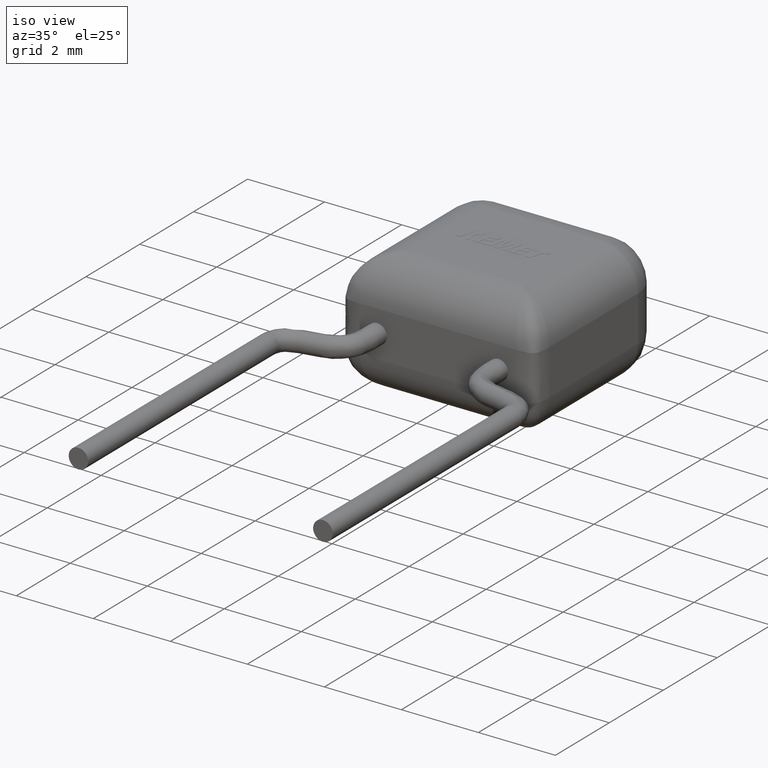
[diagram: clean part render]
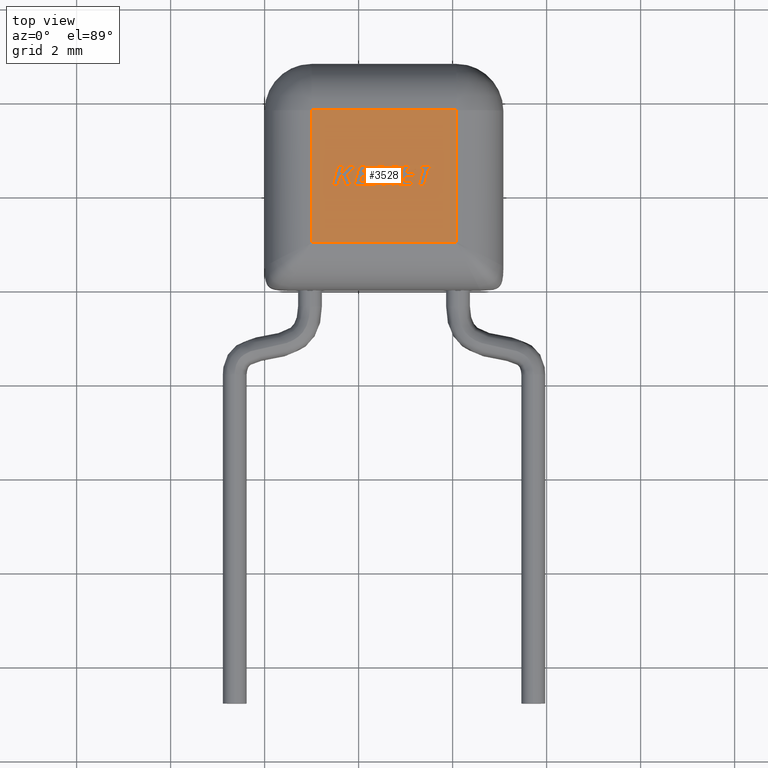
[diagram: tour spotlight — one face highlighted and labeled with its STEP entity id]
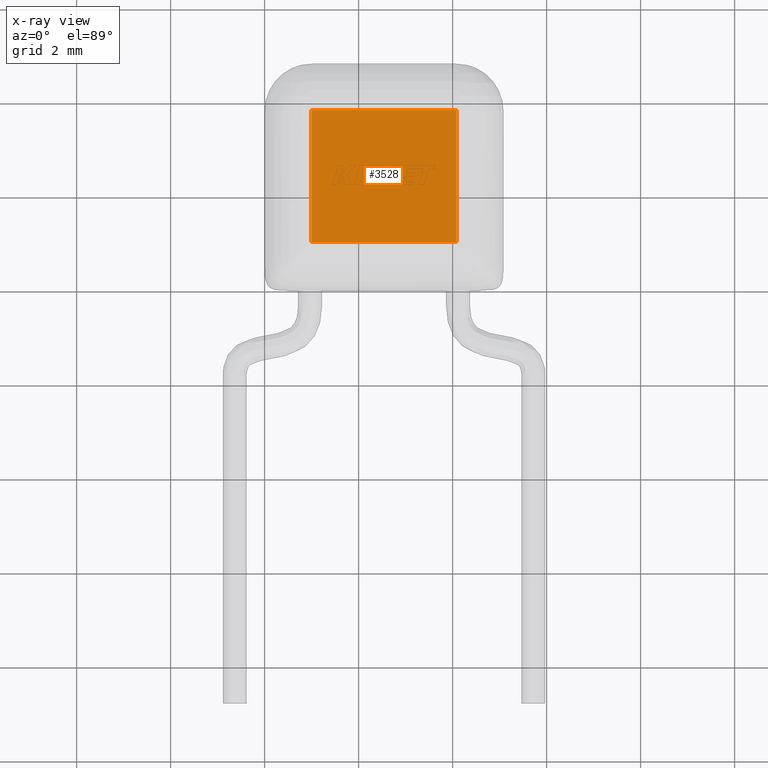
[diagram: x-ray of the same camera — body ghosted, this tour face saturated]
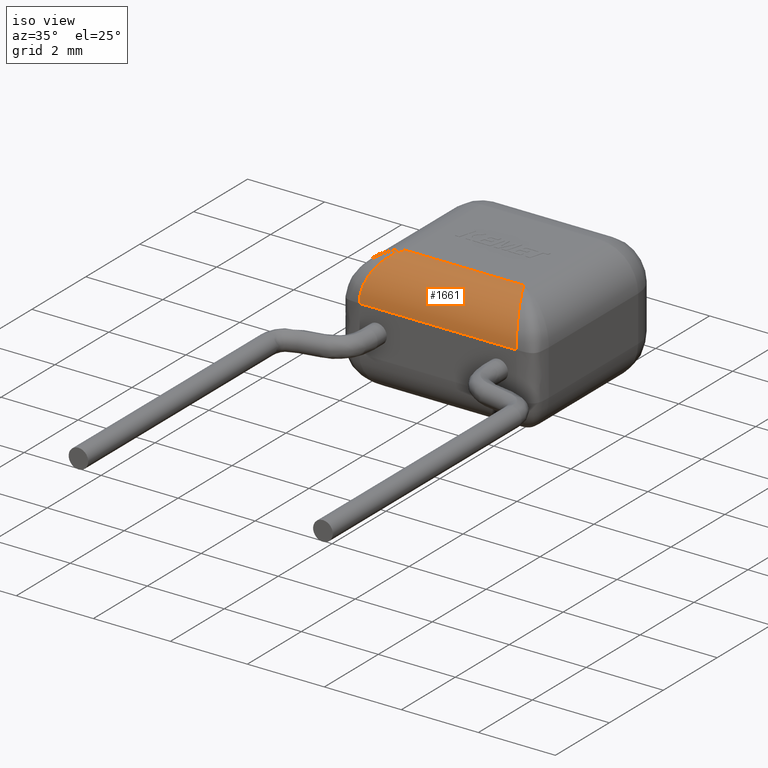
[diagram: tour spotlight — one face highlighted and labeled with its STEP entity id]
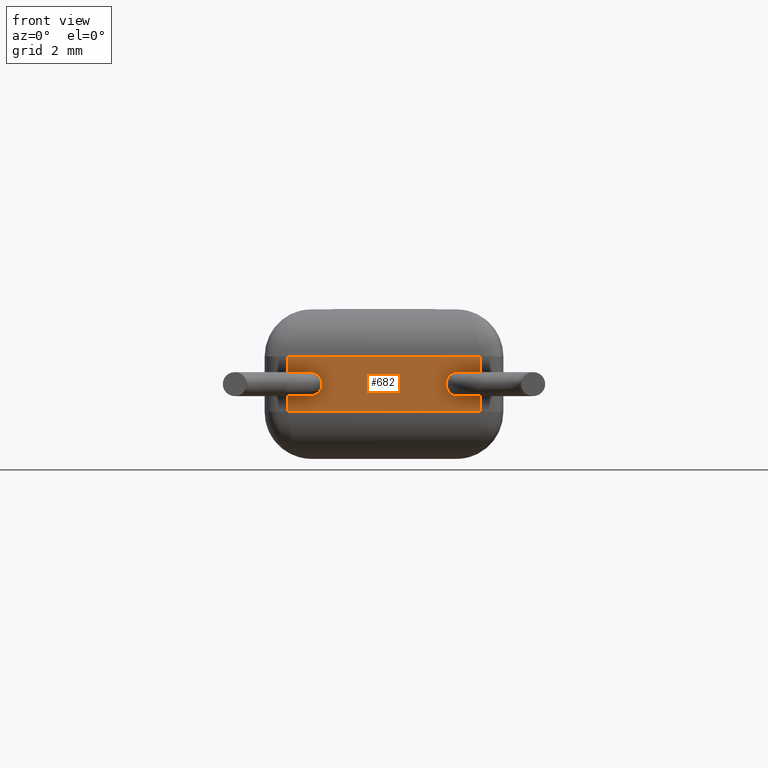
[diagram: tour spotlight — one face highlighted and labeled with its STEP entity id]
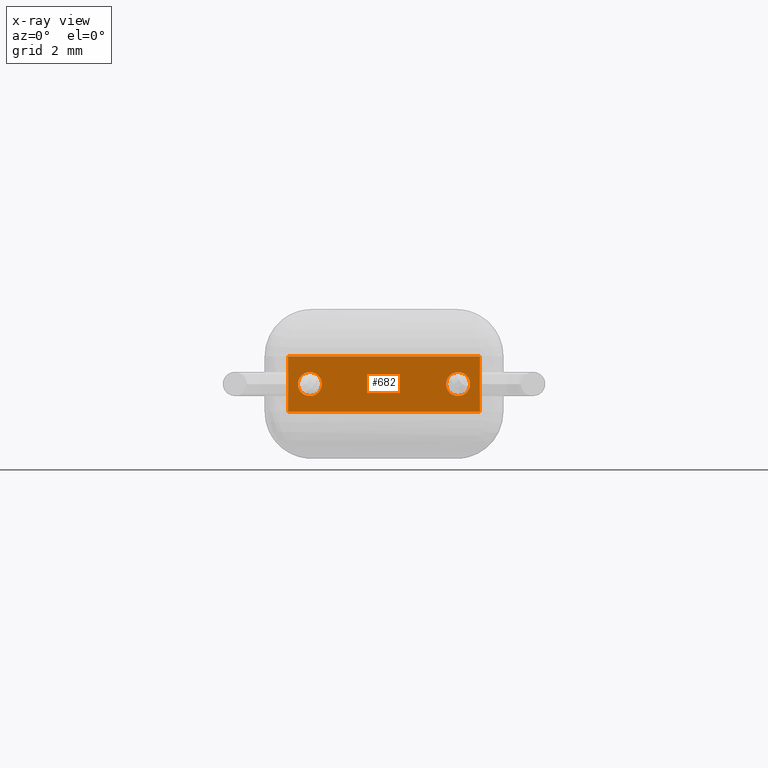
[diagram: x-ray of the same camera — body ghosted, this tour face saturated]
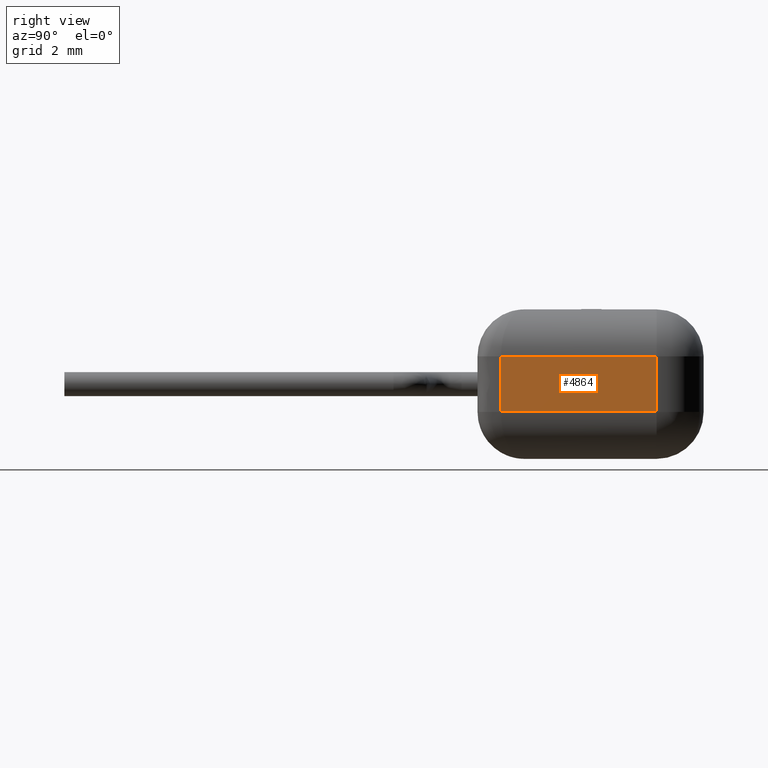
[diagram: tour spotlight — one face highlighted and labeled with its STEP entity id]
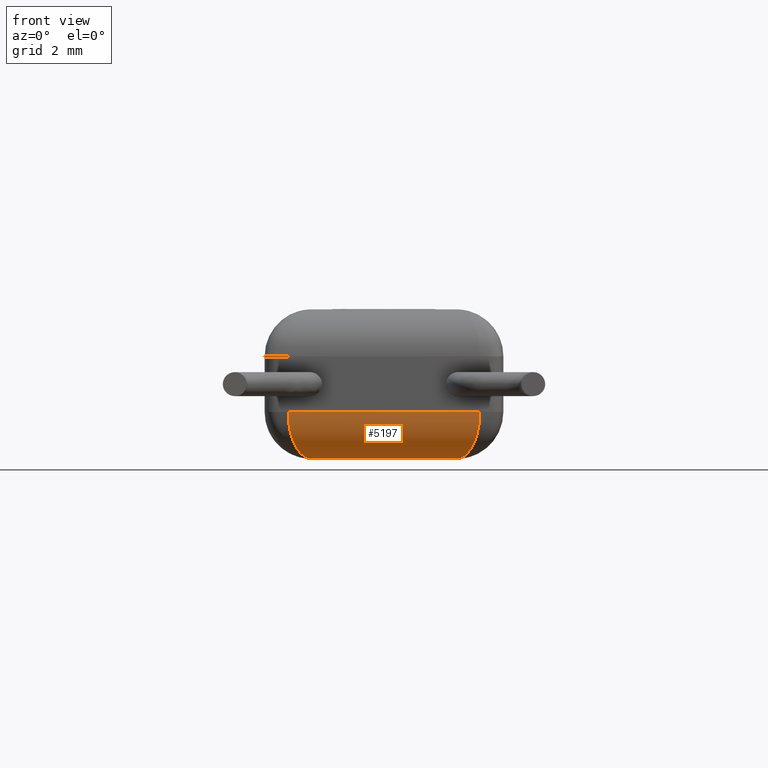
[diagram: tour spotlight — one face highlighted and labeled with its STEP entity id]
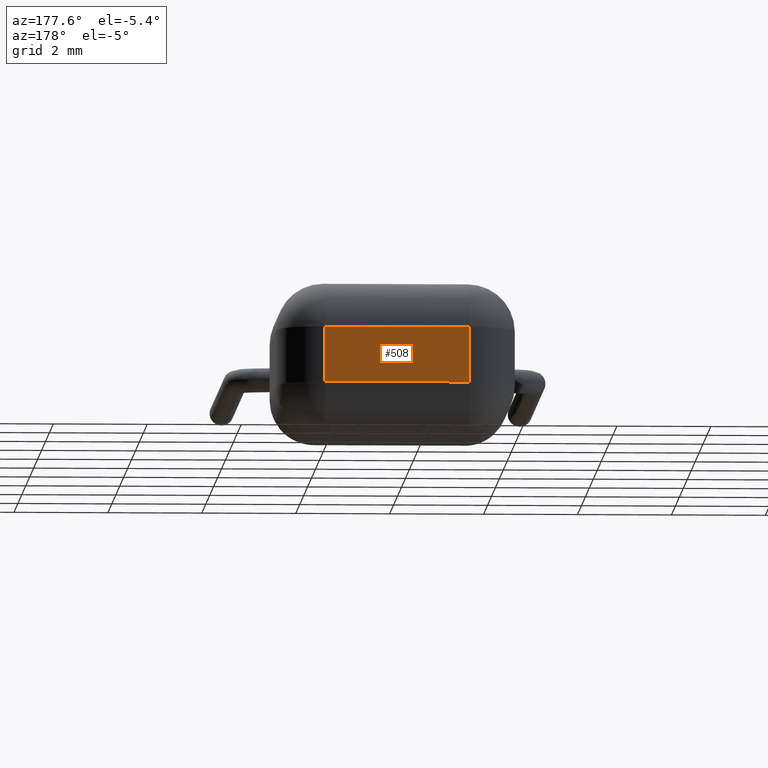
[diagram: tour spotlight — one face highlighted and labeled with its STEP entity id]
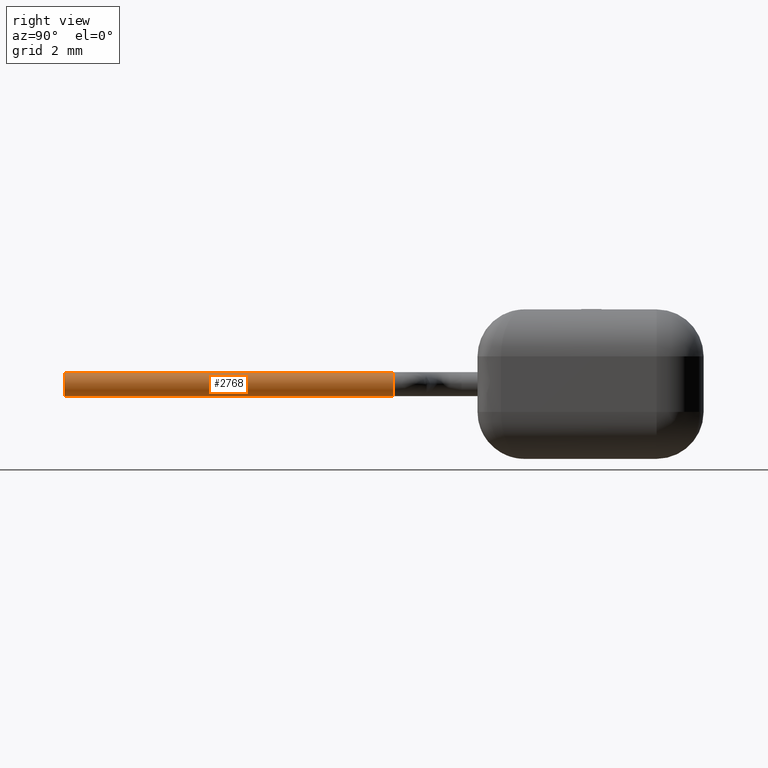
[diagram: tour spotlight — one face highlighted and labeled with its STEP entity id]
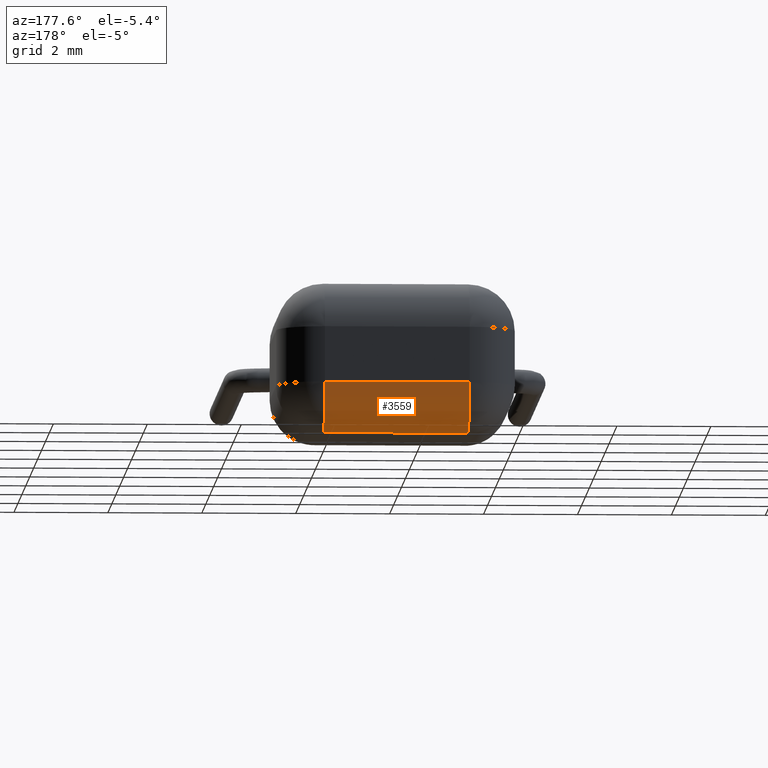
[diagram: tour spotlight — one face highlighted and labeled with its STEP entity id]
A machine part: a face-by-face anatomy tour. The part has 97 B-rep faces; the first image is the clean iso view, then the 8 largest visible faces are spotlighted one at a time (largest first), each with its STEP entity span.

Face 1 — top view, entity #3528. An x-ray twin of the same camera follows (body ghosted, this face saturated) — the face is partly hidden behind the body. In plain terms, the highlighted planar face has unit normal (0, 0, -1).
Definition (entity closure, byte-faithful):
#141 = VERTEX_POINT ( 'NONE', #6658 ) ;
#188 = EDGE_CURVE ( 'NONE', #2433, #2323, #5160, .T. ) ;
#201 = VECTOR ( 'NONE', #2171, 1000.000000000000000 ) ;
#713 = CARTESIAN_POINT ( 'NONE',  ( 0.0000000000000000000, 0.0000000000000000000, 3.180000000000000200 ) ) ;
#845 = EDGE_CURVE ( 'NONE', #5909, #2433, #4259, .T. ) ;
#890 = CARTESIAN_POINT ( 'NONE',  ( 0.9999999999999997800, 0.9999999999999997800, 3.180000000000000200 ) ) ;
#940 = LINE ( 'NONE', #5260, #6282 ) ;
#1056 = ORIENTED_EDGE ( 'NONE', *, *, #4592, .T. ) ;
#1247 = DIRECTION ( 'NONE',  ( -1.000000000000000000, 0.0000000000000000000, -0.0000000000000000000 ) ) ;
#1419 = CARTESIAN_POINT ( 'NONE',  ( 0.9999999999999997800, 3.810759999999999700, 3.180000000000000200 ) ) ;
#1579 = VECTOR ( 'NONE', #5261, 1000.000000000000000 ) ;
#1604 = ORIENTED_EDGE ( 'NONE', *, *, #188, .T. ) ;
#1715 = EDGE_CURVE ( 'NONE', #2323, #141, #5451, .T. ) ;
#2168 = FACE_OUTER_BOUND ( 'NONE', #5427, .T. ) ;
#2171 = DIRECTION ( 'NONE',  ( 1.000000000000000000, -0.0000000000000000000, 0.0000000000000000000 ) ) ;
#2323 = VERTEX_POINT ( 'NONE', #3487 ) ;
#2433 = VERTEX_POINT ( 'NONE', #890 ) ;
#2477 = AXIS2_PLACEMENT_3D ( 'NONE', #713, #4933, #1247 ) ;
#2537 = DIRECTION ( 'NONE',  ( 0.0000000000000000000, 1.000000000000000000, 0.0000000000000000000 ) ) ;
#2698 = VECTOR ( 'NONE', #2537, 1000.000000000000000 ) ;
#3149 = CARTESIAN_POINT ( 'NONE',  ( 0.9999999999999997800, 0.0000000000000000000, 3.180000000000000200 ) ) ;
#3199 = DIRECTION ( 'NONE',  ( -1.000000000000000000, 0.0000000000000000000, 0.0000000000000000000 ) ) ;
#3355 = PLANE ( 'NONE',  #2477 ) ;
#3487 = CARTESIAN_POINT ( 'NONE',  ( 4.080000000000000100, 0.9999999999999997800, 3.180000000000000200 ) ) ;
#3528 = ADVANCED_FACE ( 'NONE', ( #2168 ), #3355, .F. ) ;
#3679 = CARTESIAN_POINT ( 'NONE',  ( 0.0000000000000000000, 0.9999999999999997800, 3.180000000000000200 ) ) ;
#3996 = ORIENTED_EDGE ( 'NONE', *, *, #845, .T. ) ;
#4259 = LINE ( 'NONE', #3149, #1579 ) ;
#4592 = EDGE_CURVE ( 'NONE', #141, #5909, #940, .T. ) ;
#4643 = CARTESIAN_POINT ( 'NONE',  ( 4.080000000000000100, 0.0000000000000000000, 3.180000000000000200 ) ) ;
#4933 = DIRECTION ( 'NONE',  ( 0.0000000000000000000, 0.0000000000000000000, -1.000000000000000000 ) ) ;
#5160 = LINE ( 'NONE', #3679, #201 ) ;
#5260 = CARTESIAN_POINT ( 'NONE',  ( 0.0000000000000000000, 3.810759999999999700, 3.180000000000000200 ) ) ;
#5261 = DIRECTION ( 'NONE',  ( 0.0000000000000000000, -1.000000000000000000, 0.0000000000000000000 ) ) ;
#5427 = EDGE_LOOP ( 'NONE', ( #1604, #5693, #1056, #3996 ) ) ;
#5451 = LINE ( 'NONE', #4643, #2698 ) ;
#5693 = ORIENTED_EDGE ( 'NONE', *, *, #1715, .T. ) ;
#5909 = VERTEX_POINT ( 'NONE', #1419 ) ;
#6282 = VECTOR ( 'NONE', #3199, 1000.000000000000000 ) ;
#6658 = CARTESIAN_POINT ( 'NONE',  ( 4.079999999999999200, 3.810759999999999700, 3.180000000000000200 ) ) ;

Face 2 — iso view, entity #1661. In plain terms, the highlighted cylindrical surface (partial cylindrical patch) has radius 1 mm, axis along (1, -0, 0).
Definition (entity closure, byte-faithful):
#62 = CARTESIAN_POINT ( 'NONE',  ( 0.8769972830707475400, 0.7535623268686435500, 3.149659420100916900 ) ) ;
#70 = CARTESIAN_POINT ( 'NONE',  ( 4.532013185840000300, 0.09597360459460349500, 2.613167958023503000 ) ) ;
#89 = CARTESIAN_POINT ( 'NONE',  ( 4.568472568716050100, 0.02305484356102239000, 2.395862160687926700 ) ) ;
#109 = CARTESIAN_POINT ( 'NONE',  ( 4.580000000000001000, -5.421010862427522200E-017, 2.180000000000000600 ) ) ;
#169 = CARTESIAN_POINT ( 'NONE',  ( 0.5456518368485705500, 0.09132891209572556500, 2.597879529391315500 ) ) ;
#188 = EDGE_CURVE ( 'NONE', #2433, #2323, #5160, .T. ) ;
#189 = CARTESIAN_POINT ( 'NONE',  ( 0.5715514029673977000, 0.1430801583266670400, 2.696474704269922200 ) ) ;
#201 = VECTOR ( 'NONE', #2171, 1000.000000000000000 ) ;
#245 = AXIS2_PLACEMENT_3D ( 'NONE', #5589, #6611, #5702 ) ;
#319 = CARTESIAN_POINT ( 'NONE',  ( 4.202804976140118500, 0.7543900526677787000, 3.149586723070485900 ) ) ;
#341 = CARTESIAN_POINT ( 'NONE',  ( 4.339572177098602900, 0.4808556410899897400, 3.035106382283352400 ) ) ;
#578 = CARTESIAN_POINT ( 'NONE',  ( 0.8355970961564608300, 0.6711039339559220500, 3.124491430055558600 ) ) ;
#584 = CARTESIAN_POINT ( 'NONE',  ( 4.555813987743384500, 0.04837202599880240800, 2.488775221303483500 ) ) ;
#827 = B_SPLINE_CURVE_WITH_KNOTS ( 'NONE', 3,
 ( #5286, #1176, #1636, #62, #1662, #5240, #578, #1686, #2715, #4226, #4747, #5266, #1703, #5754, #2676, #3243, #6283, #6321, #3202, #3773, #4285, #3155, #1285, #189, #2827, #2311, #1194, #169, #1729, #5941, #4373 ),
 .UNSPECIFIED., .F., .F.,
 ( 4, 2, 2, 1, 1, 2, 2, 2, 2, 1, 2, 2, 2, 2, 2, 2, 4 ),
 ( 0.0000000000000000000, 0.1249999999999996400, 0.1874999999999995000, 0.2187499999999992500, 0.2343749999999993100, 0.2421874999999993900, 0.2499999999999994400, 0.3749999999999991700, 0.4374999999999990600, 0.4687499999999993300, 0.4843749999999995000, 0.4999999999999996700, 0.6250000000000008900, 0.6875000000000014400, 0.7187500000000013300, 0.7500000000000012200, 1.000000000000000000 ),
 .UNSPECIFIED. ) ;
#849 = CARTESIAN_POINT ( 'NONE',  ( 4.249063094294919000, 0.6618738140542064200, 3.121652566276039500 ) ) ;
#890 = CARTESIAN_POINT ( 'NONE',  ( 0.9999999999999997800, 0.9999999999999997800, 3.180000000000000200 ) ) ;
#897 = CARTESIAN_POINT ( 'NONE',  ( 4.187185638696853100, 0.7856287272240223300, 3.156880152285981300 ) ) ;
#950 = ORIENTED_EDGE ( 'NONE', *, *, #4678, .F. ) ;
#1176 = CARTESIAN_POINT ( 'NONE',  ( 0.9585828819616588600, 0.9171657639254384700, 3.180000000000000600 ) ) ;
#1194 = CARTESIAN_POINT ( 'NONE',  ( 0.5487011021579432100, 0.09742659766268191300, 2.610835460108043500 ) ) ;
#1200 = EDGE_CURVE ( 'NONE', #2323, #6362, #5529, .T. ) ;
#1285 = CARTESIAN_POINT ( 'NONE',  ( 0.5802899668879011300, 0.1605370186872720500, 2.724437833861881300 ) ) ;
#1379 = CARTESIAN_POINT ( 'NONE',  ( 4.325062611470798400, 0.5098747719690450700, 3.052138605668680300 ) ) ;
#1636 = CARTESIAN_POINT ( 'NONE',  ( 0.9226550629745528000, 0.8448339833265142700, 3.169852099146668800 ) ) ;
#1648 = ORIENTED_EDGE ( 'NONE', *, *, #5109, .T. ) ;
#1661 = ADVANCED_FACE ( 'NONE', ( #6641 ), #6474, .T. ) ;
#1662 = CARTESIAN_POINT ( 'NONE',  ( 0.8631503478656216100, 0.7259640915878832200, 3.142071682305774600 ) ) ;
#1686 = CARTESIAN_POINT ( 'NONE',  ( 0.8261827922287557900, 0.6523398703054906800, 3.117649074575837600 ) ) ;
#1703 = CARTESIAN_POINT ( 'NONE',  ( 0.7549278092236642000, 0.5096967293600894700, 3.053891596507216600 ) ) ;
#1729 = CARTESIAN_POINT ( 'NONE',  ( 0.5140466025397815200, 0.02801725078449262800, 2.453609481165897100 ) ) ;
#2152 = CARTESIAN_POINT ( 'NONE',  ( 4.516123130623503500, 0.1277537150284969400, 2.674030706394408400 ) ) ;
#2171 = DIRECTION ( 'NONE',  ( 1.000000000000000000, -0.0000000000000000000, 0.0000000000000000000 ) ) ;
#2311 = CARTESIAN_POINT ( 'NONE',  ( 0.5558559526892438200, 0.1117274117980760300, 2.639597377431949900 ) ) ;
#2323 = VERTEX_POINT ( 'NONE', #3487 ) ;
#2433 = VERTEX_POINT ( 'NONE', #890 ) ;
#2441 = CARTESIAN_POINT ( 'NONE',  ( 4.109811091926261800, 0.9403778168077003800, 3.178577835119496000 ) ) ;
#2663 = CARTESIAN_POINT ( 'NONE',  ( 4.445498525366039300, 0.2690029492822587600, 2.863216511655673400 ) ) ;
#2676 = CARTESIAN_POINT ( 'NONE',  ( 0.7020415664002281900, 0.4039466255775879800, 2.983519033593013500 ) ) ;
#2715 = CARTESIAN_POINT ( 'NONE',  ( 0.8223410737152234700, 0.6446722446609476400, 3.114745654132140100 ) ) ;
#2827 = CARTESIAN_POINT ( 'NONE',  ( 0.5596313421285447100, 0.1192690983096340200, 2.653896098959164900 ) ) ;
#2971 = CARTESIAN_POINT ( 'NONE',  ( 4.140468357486475300, 0.8790632873360994000, 3.172828307326486000 ) ) ;
#2995 = CARTESIAN_POINT ( 'NONE',  ( 0.0000000000000000000, 0.0000000000000000000, 2.180000000000000200 ) ) ;
#3093 = CARTESIAN_POINT ( 'NONE',  ( 4.381534651888925300, 0.3969306938646278100, 2.978254775784150000 ) ) ;
#3137 = CARTESIAN_POINT ( 'NONE',  ( 4.550655805988952800, 0.05868839865057444400, 2.518987445811417600 ) ) ;
#3155 = CARTESIAN_POINT ( 'NONE',  ( 0.6088812287332161500, 0.2177031131441931600, 2.806461641726287300 ) ) ;
#3186 = CARTESIAN_POINT ( 'NONE',  ( 4.456819769659170500, 0.2463604577288018600, 2.838217278468525300 ) ) ;
#3202 = CARTESIAN_POINT ( 'NONE',  ( 0.6617838083154719000, 0.3235569340319812700, 2.916531072286847200 ) ) ;
#3208 = CARTESIAN_POINT ( 'NONE',  ( 4.564722369106934100, 0.03055524845402637600, 2.427212578741738000 ) ) ;
#3227 = CARTESIAN_POINT ( 'NONE',  ( 4.580000048699837100, -1.626303258728256700E-016, 2.238888795304077500 ) ) ;
#3243 = CARTESIAN_POINT ( 'NONE',  ( 0.6841385656788558900, 0.3681975561559308600, 2.955278200118713000 ) ) ;
#3431 = CARTESIAN_POINT ( 'NONE',  ( 4.367802213994794500, 0.4243955686388609100, 2.998169321753815000 ) ) ;
#3443 = CARTESIAN_POINT ( 'NONE',  ( 4.156017329370032000, 0.8479653445581825100, 3.168500944413981600 ) ) ;
#3466 = CARTESIAN_POINT ( 'NONE',  ( 4.279848143909415400, 0.6003037094114660500, 3.097277523311988900 ) ) ;
#3487 = CARTESIAN_POINT ( 'NONE',  ( 4.080000000000000100, 0.9999999999999997800, 3.180000000000000200 ) ) ;
#3553 = CARTESIAN_POINT ( 'NONE',  ( 0.4999999999999996700, 0.0000000000000000000, 2.180000000000000600 ) ) ;
#3606 = CARTESIAN_POINT ( 'NONE',  ( 4.401515759963608300, 0.3569684789848699400, 2.945957489376070300 ) ) ;
#3639 = CARTESIAN_POINT ( 'NONE',  ( 4.408073204527417100, 0.3438535902385493300, 2.934787482664444900 ) ) ;
#3679 = CARTESIAN_POINT ( 'NONE',  ( 0.0000000000000000000, 0.9999999999999997800, 3.180000000000000200 ) ) ;
#3687 = CARTESIAN_POINT ( 'NONE',  ( 4.420974964410269200, 0.3180500710238712800, 2.911596239440631600 ) ) ;
#3704 = VECTOR ( 'NONE', #4029, 1000.000000000000000 ) ;
#3709 = CARTESIAN_POINT ( 'NONE',  ( 4.577309642202661300, 0.005380749248660157300, 2.301711208151226100 ) ) ;
#3773 = CARTESIAN_POINT ( 'NONE',  ( 0.6596796533772314500, 0.3193529436810591500, 2.912663536166969300 ) ) ;
#3972 = CARTESIAN_POINT ( 'NONE',  ( 4.233743703939151000, 0.6925125960828709700, 3.131972930065515000 ) ) ;
#4029 = DIRECTION ( 'NONE',  ( -1.000000000000000000, 0.0000000000000000000, -0.0000000000000000000 ) ) ;
#4093 = CARTESIAN_POINT ( 'NONE',  ( 4.580000000000001000, -5.421010862427522200E-017, 2.180000000000000600 ) ) ;
#4226 = CARTESIAN_POINT ( 'NONE',  ( 0.8198228131883732500, 0.6396431081957145700, 3.112818397204070400 ) ) ;
#4285 = CARTESIAN_POINT ( 'NONE',  ( 0.6311094967418319200, 0.2622366520804052500, 2.858665368752022500 ) ) ;
#4373 = CARTESIAN_POINT ( 'NONE',  ( 0.4999999999999996700, 0.0000000000000000000, 2.180000000000000600 ) ) ;
#4472 = CARTESIAN_POINT ( 'NONE',  ( 4.080000000000000100, 0.9999999999999997800, 3.180000000000000200 ) ) ;
#4498 = CARTESIAN_POINT ( 'NONE',  ( 4.295200594876204600, 0.5695988061297833100, 3.083224176182999300 ) ) ;
#4678 = EDGE_CURVE ( 'NONE', #6362, #5801, #5949, .T. ) ;
#4747 = CARTESIAN_POINT ( 'NONE',  ( 0.8194120372079648500, 0.6388234874716119900, 3.112507796877569600 ) ) ;
#4780 = CARTESIAN_POINT ( 'NONE',  ( 4.478150286218040700, 0.2036994171928697100, 2.786029054105997500 ) ) ;
#4979 = EDGE_LOOP ( 'NONE', ( #1648, #950, #5997, #5359 ) ) ;
#5109 = EDGE_CURVE ( 'NONE', #2433, #5801, #827, .T. ) ;
#5160 = LINE ( 'NONE', #3679, #201 ) ;
#5240 = CARTESIAN_POINT ( 'NONE',  ( 0.8444384322021458700, 0.6887026702440221000, 3.130401690200136600 ) ) ;
#5248 = CARTESIAN_POINT ( 'NONE',  ( 4.427319279729314200, 0.3053614405555139000, 2.899575002928442400 ) ) ;
#5266 = CARTESIAN_POINT ( 'NONE',  ( 0.7846783712138096800, 0.5693638848414136500, 3.085253684259598100 ) ) ;
#5286 = CARTESIAN_POINT ( 'NONE',  ( 0.9999999999999997800, 0.9999999999999997800, 3.180000000000000200 ) ) ;
#5359 = ORIENTED_EDGE ( 'NONE', *, *, #188, .F. ) ;
#5499 = CARTESIAN_POINT ( 'NONE',  ( 4.094702798249605800, 0.9705944035013848200, 3.180000000000000600 ) ) ;
#5529 = B_SPLINE_CURVE_WITH_KNOTS ( 'NONE', 3,
 ( #4472, #5499, #2441, #2971, #3443, #897, #319, #3972, #849, #3466, #4498, #1379, #341, #3431, #3093, #3606, #3639, #3687, #5248, #2663, #3186, #4780, #6311, #2152, #70, #3137, #584, #3208, #89, #3709, #3227, #109 ),
 .UNSPECIFIED., .F., .F.,
 ( 4, 2, 2, 2, 2, 2, 2, 2, 2, 2, 2, 2, 2, 2, 2, 4 ),
 ( 0.0000000000000000000, 0.06299582297628192300, 0.1259916459525637400, 0.1889874689288455500, 0.2519832919051274700, 0.3184119098166249300, 0.3848405277281223800, 0.4512691456396198400, 0.4844834545953685700, 0.5176977635511173000, 0.5813394608291627700, 0.6449811581072082400, 0.7722645526632991900, 0.8291984144974744500, 0.8861322763316495900, 1.000000000000000000 ),
 .UNSPECIFIED. ) ;
#5589 = CARTESIAN_POINT ( 'NONE',  ( 0.0000000000000000000, 0.9999999999999997800, 2.180000000000000200 ) ) ;
#5702 = DIRECTION ( 'NONE',  ( 0.0000000000000000000, 0.0000000000000000000, -1.000000000000000000 ) ) ;
#5754 = CARTESIAN_POINT ( 'NONE',  ( 0.7147118870096824700, 0.4292599215720543900, 3.001752224084360200 ) ) ;
#5801 = VERTEX_POINT ( 'NONE', #3553 ) ;
#5941 = CARTESIAN_POINT ( 'NONE',  ( 0.4999998878239169100, -1.609362599783170900E-016, 2.315645449662472100 ) ) ;
#5949 = LINE ( 'NONE', #2995, #3704 ) ;
#5997 = ORIENTED_EDGE ( 'NONE', *, *, #1200, .F. ) ;
#6283 = CARTESIAN_POINT ( 'NONE',  ( 0.6754626853663722200, 0.3508774145498254600, 2.940934488774888500 ) ) ;
#6311 = CARTESIAN_POINT ( 'NONE',  ( 4.488159558483778800, 0.1836808682103943700, 2.758840062930619100 ) ) ;
#6321 = CARTESIAN_POINT ( 'NONE',  ( 0.6672002351261914200, 0.3343768918256793100, 2.926323736594637700 ) ) ;
#6362 = VERTEX_POINT ( 'NONE', #4093 ) ;
#6474 = CYLINDRICAL_SURFACE ( 'NONE', #245, 1.000000000000000000 ) ;
#6611 = DIRECTION ( 'NONE',  ( 1.000000000000000000, -0.0000000000000000000, 0.0000000000000000000 ) ) ;
#6641 = FACE_OUTER_BOUND ( 'NONE', #4979, .T. ) ;

Face 3 — front view, entity #682. An x-ray twin of the same camera follows (body ghosted, this face saturated) — the face is partly hidden behind the body. In plain terms, the highlighted planar face has unit normal (0, 1, 0).
Definition (entity closure, byte-faithful):
#61 = ORIENTED_EDGE ( 'NONE', *, *, #5323, .T. ) ;
#92 = ORIENTED_EDGE ( 'NONE', *, *, #5606, .F. ) ;
#99 = EDGE_LOOP ( 'NONE', ( #4890, #61, #996, #5484 ) ) ;
#412 = VERTEX_POINT ( 'NONE', #6012 ) ;
#470 = DIRECTION ( 'NONE',  ( 0.0000000000000000000, 0.0000000000000000000, -1.000000000000000000 ) ) ;
#482 = EDGE_CURVE ( 'NONE', #4707, #412, #601, .T. ) ;
#496 = CARTESIAN_POINT ( 'NONE',  ( 4.114999999999999300, 0.0000000000000000000, 1.845000000000000000 ) ) ;
#532 = CARTESIAN_POINT ( 'NONE',  ( 0.4999999999999996700, 0.0000000000000000000, 1.000000000000015500 ) ) ;
#601 = CIRCLE ( 'NONE', #5117, 0.2550000000000000000 ) ;
#682 = ADVANCED_FACE ( 'NONE', ( #4512, #1095, #3861 ), #5214, .F. ) ;
#809 = VERTEX_POINT ( 'NONE', #496 ) ;
#866 = CARTESIAN_POINT ( 'NONE',  ( 4.114999999999999300, 0.0000000000000000000, 1.590000000000000100 ) ) ;
#894 = CARTESIAN_POINT ( 'NONE',  ( 0.9650000000000005200, 0.0000000000000000000, 1.845000000000000000 ) ) ;
#899 = CARTESIAN_POINT ( 'NONE',  ( 0.9650000000000005200, 0.0000000000000000000, 1.590000000000000100 ) ) ;
#964 = DIRECTION ( 'NONE',  ( -0.0000000000000000000, -1.000000000000000000, -0.0000000000000000000 ) ) ;
#969 = CARTESIAN_POINT ( 'NONE',  ( 0.4999999999999996700, 0.0000000000000000000, 1.000000000000015500 ) ) ;
#986 = CARTESIAN_POINT ( 'NONE',  ( 0.0000000000000000000, 0.0000000000000000000, 3.180000000000000200 ) ) ;
#987 = AXIS2_PLACEMENT_3D ( 'NONE', #986, #5236, #5735 ) ;
#996 = ORIENTED_EDGE ( 'NONE', *, *, #4114, .T. ) ;
#1059 = CARTESIAN_POINT ( 'NONE',  ( 0.4999999999999995600, 0.0000000000000000000, 1.786666666666672000 ) ) ;
#1091 = CARTESIAN_POINT ( 'NONE',  ( 4.580000000000001000, 0.0000000000000000000, 1.000000000000000000 ) ) ;
#1095 = FACE_OUTER_BOUND ( 'NONE', #99, .T. ) ;
#1239 = CARTESIAN_POINT ( 'NONE',  ( 4.580000000000000100, -5.421010862427522200E-017, 1.000000000000000900 ) ) ;
#1563 = VERTEX_POINT ( 'NONE', #2641 ) ;
#1633 = ORIENTED_EDGE ( 'NONE', *, *, #482, .F. ) ;
#1740 = EDGE_LOOP ( 'NONE', ( #1633, #92 ) ) ;
#1857 = DIRECTION ( 'NONE',  ( -0.0000000000000000000, 1.000000000000000000, -0.0000000000000000000 ) ) ;
#1997 = DIRECTION ( 'NONE',  ( 0.0000000000000000000, 0.0000000000000000000, 1.000000000000000000 ) ) ;
#2062 = CARTESIAN_POINT ( 'NONE',  ( 0.4999999999999996700, 0.0000000000000000000, 2.180000000000000600 ) ) ;
#2176 = AXIS2_PLACEMENT_3D ( 'NONE', #2511, #6122, #3039 ) ;
#2251 = CARTESIAN_POINT ( 'NONE',  ( 4.580000000000001000, -5.421010862427522200E-017, 2.180000000000000600 ) ) ;
#2511 = CARTESIAN_POINT ( 'NONE',  ( 0.9650000000000005200, 0.0000000000000000000, 1.590000000000000100 ) ) ;
#2631 = CARTESIAN_POINT ( 'NONE',  ( 0.4999999999999995600, 0.0000000000000000000, 1.393333333333343700 ) ) ;
#2641 = CARTESIAN_POINT ( 'NONE',  ( 4.114999999999999300, 0.0000000000000000000, 1.335000000000000000 ) ) ;
#2660 = DIRECTION ( 'NONE',  ( 1.000000000000000000, -0.0000000000000000000, 0.0000000000000000000 ) ) ;
#2696 = CARTESIAN_POINT ( 'NONE',  ( 4.580000000000000100, -5.421010862427522200E-017, 1.000000000000000900 ) ) ;
#2927 = EDGE_LOOP ( 'NONE', ( #6468, #5881 ) ) ;
#2995 = CARTESIAN_POINT ( 'NONE',  ( 0.0000000000000000000, 0.0000000000000000000, 2.180000000000000200 ) ) ;
#3039 = DIRECTION ( 'NONE',  ( 0.0000000000000000000, 0.0000000000000000000, 1.000000000000000000 ) ) ;
#3058 = CARTESIAN_POINT ( 'NONE',  ( 4.114999999999999300, 0.0000000000000000000, 1.590000000000000100 ) ) ;
#3135 = VERTEX_POINT ( 'NONE', #532 ) ;
#3372 = B_SPLINE_CURVE_WITH_KNOTS ( 'NONE', 3,
 ( #1239, #5322, #5822, #2251 ),
 .UNSPECIFIED., .F., .F.,
 ( 4, 4 ),
 ( 0.3144654088050316500, 0.6855345911949685100 ),
 .UNSPECIFIED. ) ;
#3553 = CARTESIAN_POINT ( 'NONE',  ( 0.4999999999999996700, 0.0000000000000000000, 2.180000000000000600 ) ) ;
#3579 = B_SPLINE_CURVE_WITH_KNOTS ( 'NONE', 3,
 ( #2062, #1059, #2631, #969 ),
 .UNSPECIFIED., .F., .F.,
 ( 4, 4 ),
 ( 0.3144654088050316500, 0.6855345911949638500 ),
 .UNSPECIFIED. ) ;
#3704 = VECTOR ( 'NONE', #4029, 1000.000000000000000 ) ;
#3854 = EDGE_CURVE ( 'NONE', #809, #1563, #4034, .T. ) ;
#3861 = FACE_BOUND ( 'NONE', #1740, .T. ) ;
#4029 = DIRECTION ( 'NONE',  ( -1.000000000000000000, 0.0000000000000000000, -0.0000000000000000000 ) ) ;
#4034 = CIRCLE ( 'NONE', #5890, 0.2550000000000000000 ) ;
#4041 = CIRCLE ( 'NONE', #6204, 0.2550000000000000000 ) ;
#4093 = CARTESIAN_POINT ( 'NONE',  ( 4.580000000000001000, -5.421010862427522200E-017, 2.180000000000000600 ) ) ;
#4114 = EDGE_CURVE ( 'NONE', #5070, #6362, #3372, .T. ) ;
#4512 = FACE_BOUND ( 'NONE', #2927, .T. ) ;
#4678 = EDGE_CURVE ( 'NONE', #6362, #5801, #5949, .T. ) ;
#4707 = VERTEX_POINT ( 'NONE', #894 ) ;
#4795 = LINE ( 'NONE', #1091, #6687 ) ;
#4890 = ORIENTED_EDGE ( 'NONE', *, *, #4949, .T. ) ;
#4949 = EDGE_CURVE ( 'NONE', #5801, #3135, #3579, .T. ) ;
#5070 = VERTEX_POINT ( 'NONE', #2696 ) ;
#5117 = AXIS2_PLACEMENT_3D ( 'NONE', #899, #964, #1997 ) ;
#5214 = PLANE ( 'NONE',  #987 ) ;
#5236 = DIRECTION ( 'NONE',  ( 0.0000000000000000000, 1.000000000000000000, 0.0000000000000000000 ) ) ;
#5322 = CARTESIAN_POINT ( 'NONE',  ( 4.579999999999999200, 0.0000000000000000000, 1.393333333333334200 ) ) ;
#5323 = EDGE_CURVE ( 'NONE', #3135, #5070, #4795, .T. ) ;
#5465 = DIRECTION ( 'NONE',  ( 0.0000000000000000000, 0.0000000000000000000, -1.000000000000000000 ) ) ;
#5484 = ORIENTED_EDGE ( 'NONE', *, *, #4678, .T. ) ;
#5606 = EDGE_CURVE ( 'NONE', #412, #4707, #6527, .T. ) ;
#5735 = DIRECTION ( 'NONE',  ( 0.0000000000000000000, -0.0000000000000000000, 1.000000000000000000 ) ) ;
#5801 = VERTEX_POINT ( 'NONE', #3553 ) ;
#5822 = CARTESIAN_POINT ( 'NONE',  ( 4.579999999999999200, 0.0000000000000000000, 1.786666666666667300 ) ) ;
#5881 = ORIENTED_EDGE ( 'NONE', *, *, #6171, .T. ) ;
#5890 = AXIS2_PLACEMENT_3D ( 'NONE', #3058, #6670, #470 ) ;
#5949 = LINE ( 'NONE', #2995, #3704 ) ;
#6012 = CARTESIAN_POINT ( 'NONE',  ( 0.9650000000000005200, 0.0000000000000000000, 1.335000000000000000 ) ) ;
#6122 = DIRECTION ( 'NONE',  ( -0.0000000000000000000, -1.000000000000000000, -0.0000000000000000000 ) ) ;
#6171 = EDGE_CURVE ( 'NONE', #1563, #809, #4041, .T. ) ;
#6204 = AXIS2_PLACEMENT_3D ( 'NONE', #866, #1857, #5465 ) ;
#6362 = VERTEX_POINT ( 'NONE', #4093 ) ;
#6468 = ORIENTED_EDGE ( 'NONE', *, *, #3854, .T. ) ;
#6527 = CIRCLE ( 'NONE', #2176, 0.2550000000000000000 ) ;
#6670 = DIRECTION ( 'NONE',  ( -0.0000000000000000000, 1.000000000000000000, -0.0000000000000000000 ) ) ;
#6687 = VECTOR ( 'NONE', #2660, 1000.000000000000000 ) ;

Face 4 — right view, entity #4864. In plain terms, the highlighted planar face has unit normal (-1, 0, 0).
Definition (entity closure, byte-faithful):
#237 = CARTESIAN_POINT ( 'NONE',  ( 5.080000000000000100, 3.810759999999999700, 1.000000000000000000 ) ) ;
#399 = ORIENTED_EDGE ( 'NONE', *, *, #5288, .T. ) ;
#418 = LINE ( 'NONE', #2593, #1490 ) ;
#522 = PLANE ( 'NONE',  #1534 ) ;
#666 = VERTEX_POINT ( 'NONE', #5675 ) ;
#1408 = EDGE_CURVE ( 'NONE', #1974, #4382, #418, .T. ) ;
#1490 = VECTOR ( 'NONE', #3115, 1000.000000000000000 ) ;
#1534 = AXIS2_PLACEMENT_3D ( 'NONE', #4086, #6162, #4172 ) ;
#1744 = CARTESIAN_POINT ( 'NONE',  ( 5.080000000000000100, 0.4999999999999996700, 1.000000000000014400 ) ) ;
#1974 = VERTEX_POINT ( 'NONE', #4911 ) ;
#2226 = CARTESIAN_POINT ( 'NONE',  ( 5.080000000000000100, 0.4999999999999995600, 1.393333333333342900 ) ) ;
#2287 = CARTESIAN_POINT ( 'NONE',  ( 5.079999999999999200, 0.4999999999999996700, 2.180000000000000600 ) ) ;
#2343 = CARTESIAN_POINT ( 'NONE',  ( 5.080000000000000100, 0.0000000000000000000, 2.180000000000000200 ) ) ;
#2364 = CARTESIAN_POINT ( 'NONE',  ( 5.079999999999999200, 0.4999999999999996700, 2.180000000000000600 ) ) ;
#2593 = CARTESIAN_POINT ( 'NONE',  ( 5.080000000000000100, 3.810759999999999700, 3.180000000000000200 ) ) ;
#2677 = LINE ( 'NONE', #237, #3900 ) ;
#2908 = EDGE_LOOP ( 'NONE', ( #5034, #399, #4136, #2947 ) ) ;
#2947 = ORIENTED_EDGE ( 'NONE', *, *, #3242, .T. ) ;
#3078 = CARTESIAN_POINT ( 'NONE',  ( 5.080000000000000100, 3.810759999999999700, 2.180000000000000200 ) ) ;
#3115 = DIRECTION ( 'NONE',  ( -0.0000000000000000000, -0.0000000000000000000, 1.000000000000000000 ) ) ;
#3242 = EDGE_CURVE ( 'NONE', #4382, #3494, #6371, .T. ) ;
#3312 = VECTOR ( 'NONE', #6154, 1000.000000000000000 ) ;
#3494 = VERTEX_POINT ( 'NONE', #2364 ) ;
#3605 = FACE_OUTER_BOUND ( 'NONE', #2908, .T. ) ;
#3900 = VECTOR ( 'NONE', #5948, 1000.000000000000000 ) ;
#4086 = CARTESIAN_POINT ( 'NONE',  ( 5.080000000000000100, 0.0000000000000000000, 3.180000000000000200 ) ) ;
#4136 = ORIENTED_EDGE ( 'NONE', *, *, #1408, .T. ) ;
#4172 = DIRECTION ( 'NONE',  ( 0.0000000000000000000, 0.0000000000000000000, 1.000000000000000000 ) ) ;
#4208 = B_SPLINE_CURVE_WITH_KNOTS ( 'NONE', 3,
 ( #2287, #5912, #2226, #1744 ),
 .UNSPECIFIED., .F., .F.,
 ( 4, 4 ),
 ( 0.3144654088050316500, 0.6855345911949641800 ),
 .UNSPECIFIED. ) ;
#4382 = VERTEX_POINT ( 'NONE', #3078 ) ;
#4864 = ADVANCED_FACE ( 'NONE', ( #3605 ), #522, .F. ) ;
#4911 = CARTESIAN_POINT ( 'NONE',  ( 5.080000000000000100, 3.810759999999999700, 1.000000000000000000 ) ) ;
#5034 = ORIENTED_EDGE ( 'NONE', *, *, #6591, .T. ) ;
#5288 = EDGE_CURVE ( 'NONE', #666, #1974, #2677, .T. ) ;
#5675 = CARTESIAN_POINT ( 'NONE',  ( 5.080000000000000100, 0.4999999999999996700, 1.000000000000014400 ) ) ;
#5912 = CARTESIAN_POINT ( 'NONE',  ( 5.080000000000000100, 0.4999999999999995600, 1.786666666666671500 ) ) ;
#5948 = DIRECTION ( 'NONE',  ( 0.0000000000000000000, 1.000000000000000000, 0.0000000000000000000 ) ) ;
#6154 = DIRECTION ( 'NONE',  ( -0.0000000000000000000, -1.000000000000000000, -0.0000000000000000000 ) ) ;
#6162 = DIRECTION ( 'NONE',  ( -1.000000000000000000, 0.0000000000000000000, 0.0000000000000000000 ) ) ;
#6371 = LINE ( 'NONE', #2343, #3312 ) ;
#6591 = EDGE_CURVE ( 'NONE', #3494, #666, #4208, .T. ) ;

Face 5 — front view, entity #5197. In plain terms, the highlighted cylindrical surface (partial cylindrical patch) has radius 1 mm, axis along (-1, 0, 0).
Definition (entity closure, byte-faithful):
#41 = CARTESIAN_POINT ( 'NONE',  ( 0.5353362404163155600, 0.07065721311068169600, 0.6303702823973788000 ) ) ;
#74 = CARTESIAN_POINT ( 'NONE',  ( 0.4999999999999997800, 0.9999999999999997800, 0.0000000000000000000 ) ) ;
#131 = CARTESIAN_POINT ( 'NONE',  ( 0.8032222850353487600, 0.6064352118171243400, 0.08063124185583196700 ) ) ;
#171 = AXIS2_PLACEMENT_3D ( 'NONE', #4231, #2683, #2682 ) ;
#206 = CARTESIAN_POINT ( 'NONE',  ( 4.420974964415153300, 0.3180500710289175200, 0.2684037605546644700 ) ) ;
#228 = CARTESIAN_POINT ( 'NONE',  ( 4.401515759968290800, 0.3569684789899639200, 0.2340425106196448200 ) ) ;
#458 = CARTESIAN_POINT ( 'NONE',  ( 0.5291907817001160200, 0.05833379440562073300, 0.6630001470034702100 ) ) ;
#532 = CARTESIAN_POINT ( 'NONE',  ( 0.4999999999999996700, 0.0000000000000000000, 1.000000000000015500 ) ) ;
#558 = CARTESIAN_POINT ( 'NONE',  ( 0.5707462164805725500, 0.1414578906452304300, 0.4829428907718630900 ) ) ;
#722 = ORIENTED_EDGE ( 'NONE', *, *, #1583, .F. ) ;
#752 = CARTESIAN_POINT ( 'NONE',  ( 4.381534651893368900, 0.3969306938697339500, 0.2017452242119776300 ) ) ;
#800 = CARTESIAN_POINT ( 'NONE',  ( 4.295200594879285700, 0.5695988061345073100, 0.09677582381475284500 ) ) ;
#997 = CARTESIAN_POINT ( 'NONE',  ( 0.5389608688546760900, 0.07792418075976145800, 0.6126662057265583900 ) ) ;
#1091 = CARTESIAN_POINT ( 'NONE',  ( 4.580000000000001000, 0.0000000000000000000, 1.000000000000000000 ) ) ;
#1094 = CARTESIAN_POINT ( 'NONE',  ( 0.5993374783256979500, 0.1986202154859676200, 0.4009164558202948900 ) ) ;
#1394 = CARTESIAN_POINT ( 'NONE',  ( 4.249063094297258500, 0.6618738140582513000, 0.05834743372252346200 ) ) ;
#1552 = CARTESIAN_POINT ( 'NONE',  ( 0.5184362359563781100, 0.03676939253735456200, 0.7290873416398719900 ) ) ;
#1583 = EDGE_CURVE ( 'NONE', #4825, #2273, #4830, .T. ) ;
#1645 = CARTESIAN_POINT ( 'NONE',  ( 0.7893979498719686500, 0.5787597796754501100, 0.09276562390246703700 ) ) ;
#1792 = CARTESIAN_POINT ( 'NONE',  ( 4.564722369111008100, 0.03055524845450068700, 0.7527874212563634400 ) ) ;
#1830 = CYLINDRICAL_SURFACE ( 'NONE', #171, 1.000000000000000000 ) ;
#1858 = CARTESIAN_POINT ( 'NONE',  ( 4.233743703941281700, 0.6925125960865701200, 0.04802706993330251000 ) ) ;
#1880 = CARTESIAN_POINT ( 'NONE',  ( 4.367802213999048000, 0.4243955686439478400, 0.1818306782425839200 ) ) ;
#2037 = CARTESIAN_POINT ( 'NONE',  ( 4.080000000000000100, 0.9999999999999997800, 0.0000000000000000000 ) ) ;
#2236 = CARTESIAN_POINT ( 'NONE',  ( 0.7556451090382361200, 0.5111597003949460700, 0.1269821814251227100 ) ) ;
#2272 = CARTESIAN_POINT ( 'NONE',  ( 4.445498525371239600, 0.2690029492869359100, 0.3167834883393119100 ) ) ;
#2273 = VERTEX_POINT ( 'NONE', #5518 ) ;
#2414 = CARTESIAN_POINT ( 'NONE',  ( 4.080000000000000100, 0.9999999999999997800, 0.0000000000000000000 ) ) ;
#2587 = CARTESIAN_POINT ( 'NONE',  ( 0.6263353999038144800, 0.2526465610591912000, 0.3353540919535394300 ) ) ;
#2614 = CARTESIAN_POINT ( 'NONE',  ( 0.6502036066640487500, 0.3004057133897319900, 0.2854069059247158500 ) ) ;
#2660 = DIRECTION ( 'NONE',  ( 1.000000000000000000, -0.0000000000000000000, 0.0000000000000000000 ) ) ;
#2682 = DIRECTION ( 'NONE',  ( 0.0000000000000000000, 0.0000000000000000000, 1.000000000000000000 ) ) ;
#2683 = DIRECTION ( 'NONE',  ( -1.000000000000000000, 0.0000000000000000000, 0.0000000000000000000 ) ) ;
#2696 = CARTESIAN_POINT ( 'NONE',  ( 4.580000000000000100, -5.421010862427522200E-017, 1.000000000000000900 ) ) ;
#2706 = ORIENTED_EDGE ( 'NONE', *, *, #5154, .F. ) ;
#2803 = CARTESIAN_POINT ( 'NONE',  ( 4.516123130629225100, 0.1277537150310663900, 0.5059692936009120300 ) ) ;
#2837 = CARTESIAN_POINT ( 'NONE',  ( 0.8161533021696294500, 0.6323066505657867200, 0.07004923771834788100 ) ) ;
#2922 = CARTESIAN_POINT ( 'NONE',  ( 4.325062611474387500, 0.5098747719739817900, 0.1278613943285345500 ) ) ;
#2945 = CARTESIAN_POINT ( 'NONE',  ( 4.187185638698347900, 0.7856287272266442300, 0.02311984771345063400 ) ) ;
#3021 = EDGE_CURVE ( 'NONE', #3135, #2273, #3458, .T. ) ;
#3111 = CARTESIAN_POINT ( 'NONE',  ( 0.5035115945631627500, 0.006921618483202282000, 0.8638175634996910800 ) ) ;
#3134 = CARTESIAN_POINT ( 'NONE',  ( 0.7012872847166434800, 0.4024111036968007200, 0.1956547192522122000 ) ) ;
#3135 = VERTEX_POINT ( 'NONE', #532 ) ;
#3161 = ORIENTED_EDGE ( 'NONE', *, *, #3021, .T. ) ;
#3163 = CARTESIAN_POINT ( 'NONE',  ( 0.5263375340118250400, 0.05261129900071134800, 0.6794436599877755600 ) ) ;
#3207 = FACE_OUTER_BOUND ( 'NONE', #4056, .T. ) ;
#3328 = CARTESIAN_POINT ( 'NONE',  ( 4.427319279734251500, 0.3053614405605341600, 0.2804249970667135900 ) ) ;
#3350 = CARTESIAN_POINT ( 'NONE',  ( 4.456819769664539500, 0.2463604577331734200, 0.3417827215264422300 ) ) ;
#3458 = B_SPLINE_CURVE_WITH_KNOTS ( 'NONE', 3,
 ( #5723, #3686, #3111, #6695, #1552, #3163, #458, #41, #997, #4711, #558, #1094, #4646, #2587, #6192, #5704, #2614, #4206, #3637, #3134, #3662, #2236, #5327, #1645, #131, #4913, #3844, #2837, #4934, #6409, #5456 ),
 .UNSPECIFIED., .F., .F.,
 ( 4, 2, 2, 2, 2, 2, 2, 1, 2, 2, 2, 2, 1, 1, 2, 2, 4 ),
 ( 0.0000000000000000000, 0.1250000000000002200, 0.1875000000000003300, 0.2187500000000003100, 0.2500000000000002800, 0.3750000000000004400, 0.4375000000000005600, 0.4687500000000006100, 0.4843750000000005600, 0.5000000000000005600, 0.6250000000000007800, 0.6875000000000008900, 0.7187500000000008900, 0.7343750000000008900, 0.7421875000000008900, 0.7500000000000008900, 1.000000000000000000 ),
 .UNSPECIFIED. ) ;
#3637 = CARTESIAN_POINT ( 'NONE',  ( 0.6774230487153288800, 0.3548285192997229200, 0.2337975904624680600 ) ) ;
#3662 = CARTESIAN_POINT ( 'NONE',  ( 0.7415032069312578200, 0.4828455422828532000, 0.1435116919800875600 ) ) ;
#3686 = CARTESIAN_POINT ( 'NONE',  ( 0.4999999439231115300, -2.048760941171338900E-016, 0.9321923644891897400 ) ) ;
#3838 = CARTESIAN_POINT ( 'NONE',  ( 4.532013185845542600, 0.09597360459658288400, 0.5668320419722138200 ) ) ;
#3844 = CARTESIAN_POINT ( 'NONE',  ( 0.8132924681197951600, 0.6265844989230727700, 0.07232552727564159300 ) ) ;
#4056 = EDGE_LOOP ( 'NONE', ( #3161, #722, #2706, #6002 ) ) ;
#4206 = CARTESIAN_POINT ( 'NONE',  ( 0.6538904593733321200, 0.3077789602800348700, 0.2782785939299058400 ) ) ;
#4231 = CARTESIAN_POINT ( 'NONE',  ( 0.0000000000000000000, 0.9999999999999997800, 1.000000000000000000 ) ) ;
#4348 = CARTESIAN_POINT ( 'NONE',  ( 4.488159558489449800, 0.1836808682138594800, 0.4211599370644167900 ) ) ;
#4441 = CARTESIAN_POINT ( 'NONE',  ( 4.279848143912225600, 0.6003037094160433900, 0.08272247668602721000 ) ) ;
#4468 = CARTESIAN_POINT ( 'NONE',  ( 4.156017329371089800, 0.8479653445600626700, 0.01149905558573676700 ) ) ;
#4578 = VECTOR ( 'NONE', #6328, 1000.000000000000000 ) ;
#4646 = CARTESIAN_POINT ( 'NONE',  ( 0.6096608664508680300, 0.2192752664006901200, 0.3741931020957704500 ) ) ;
#4711 = CARTESIAN_POINT ( 'NONE',  ( 0.5548572452910010000, 0.1097746922689984000, 0.5400875569237968400 ) ) ;
#4795 = LINE ( 'NONE', #1091, #6687 ) ;
#4825 = VERTEX_POINT ( 'NONE', #2037 ) ;
#4830 = LINE ( 'NONE', #74, #4578 ) ;
#4865 = CARTESIAN_POINT ( 'NONE',  ( 4.568472568719744100, 0.02305484356134198200, 0.7841378393105761200 ) ) ;
#4885 = CARTESIAN_POINT ( 'NONE',  ( 4.478150286223644200, 0.2036994171966352000, 0.3939709458889946200 ) ) ;
#4906 = CARTESIAN_POINT ( 'NONE',  ( 4.580000048701076100, -1.626303258728256700E-016, 0.9411112046959408900 ) ) ;
#4913 = CARTESIAN_POINT ( 'NONE',  ( 0.8092505837353518600, 0.6184980475642234400, 0.07562165533984975500 ) ) ;
#4934 = CARTESIAN_POINT ( 'NONE',  ( 0.8562673831415442700, 0.7125289222130232200, 0.03857213817927054200 ) ) ;
#5017 = CARTESIAN_POINT ( 'NONE',  ( 4.140468357487310200, 0.8790632873376033100, 0.007171692673338334200 ) ) ;
#5070 = VERTEX_POINT ( 'NONE', #2696 ) ;
#5154 = EDGE_CURVE ( 'NONE', #5070, #4825, #6544, .T. ) ;
#5197 = ADVANCED_FACE ( 'NONE', ( #3207 ), #1830, .T. ) ;
#5323 = EDGE_CURVE ( 'NONE', #3135, #5070, #4795, .T. ) ;
#5327 = CARTESIAN_POINT ( 'NONE',  ( 0.7779628542518646200, 0.5558561874358148900, 0.1038875565657237100 ) ) ;
#5365 = CARTESIAN_POINT ( 'NONE',  ( 4.580000000000000100, -5.421010862427522200E-017, 1.000000000000000900 ) ) ;
#5408 = CARTESIAN_POINT ( 'NONE',  ( 4.408073204532170700, 0.3438535902436322100, 0.2452125173311300000 ) ) ;
#5456 = CARTESIAN_POINT ( 'NONE',  ( 0.9999999999999997800, 1.000000000000000000, 0.0000000000000000000 ) ) ;
#5467 = CARTESIAN_POINT ( 'NONE',  ( 4.202804976141828200, 0.7543900526707665300, 0.03041327692876607400 ) ) ;
#5518 = CARTESIAN_POINT ( 'NONE',  ( 0.9999999999999997800, 1.000000000000000000, 0.0000000000000000000 ) ) ;
#5704 = CARTESIAN_POINT ( 'NONE',  ( 0.6440507032138039800, 0.2880975378302083600, 0.2976679273204119700 ) ) ;
#5723 = CARTESIAN_POINT ( 'NONE',  ( 0.4999999999999996700, 0.0000000000000000000, 1.000000000000015500 ) ) ;
#5871 = CARTESIAN_POINT ( 'NONE',  ( 4.555813987748088300, 0.04837202599967298200, 0.6912247786938011700 ) ) ;
#6002 = ORIENTED_EDGE ( 'NONE', *, *, #5323, .F. ) ;
#6029 = CARTESIAN_POINT ( 'NONE',  ( 4.094702798249805700, 0.9705944035017578500, -1.275264350309038300E-017 ) ) ;
#6192 = CARTESIAN_POINT ( 'NONE',  ( 0.6349700294465857600, 0.2699287684754252400, 0.3162463528361296200 ) ) ;
#6328 = DIRECTION ( 'NONE',  ( -1.000000000000000000, -0.0000000000000000000, -0.0000000000000000000 ) ) ;
#6385 = CARTESIAN_POINT ( 'NONE',  ( 4.550655805993902600, 0.05868839865168656200, 0.6610125541854511300 ) ) ;
#6401 = CARTESIAN_POINT ( 'NONE',  ( 4.577309642205032800, 0.005380749248669818000, 0.8782887918483138800 ) ) ;
#6409 = CARTESIAN_POINT ( 'NONE',  ( 0.9171444230145782100, 0.8342888460374652300, -5.082197683525797400E-018 ) ) ;
#6464 = CARTESIAN_POINT ( 'NONE',  ( 4.339572177102430000, 0.4808556410949926300, 0.1448936177135906300 ) ) ;
#6511 = CARTESIAN_POINT ( 'NONE',  ( 4.109811091926669500, 0.9403778168084508900, 0.001422164880469945100 ) ) ;
#6544 = B_SPLINE_CURVE_WITH_KNOTS ( 'NONE', 3,
 ( #5365, #4906, #6401, #4865, #1792, #5871, #6385, #3838, #2803, #4348, #4885, #3350, #2272, #3328, #206, #5408, #228, #752, #1880, #6464, #2922, #800, #4441, #1394, #1858, #5467, #2945, #4468, #5017, #6511, #6029, #2414 ),
 .UNSPECIFIED., .F., .F.,
 ( 4, 2, 2, 2, 2, 2, 2, 2, 2, 2, 2, 2, 2, 2, 2, 4 ),
 ( 0.0000000000000000000, 0.1138677236691859100, 0.1708015855037788600, 0.2277354473383718100, 0.3550188418952534600, 0.4186605391736942800, 0.4823022364521351000, 0.5155165454077506000, 0.5487308543633662200, 0.6151594722745974400, 0.6815880901858286700, 0.7480167080970598900, 0.8110125310727949200, 0.8740083540485299500, 0.9370041770242649700, 1.000000000000000000 ),
 .UNSPECIFIED. ) ;
#6687 = VECTOR ( 'NONE', #2660, 1000.000000000000000 ) ;
#6695 = CARTESIAN_POINT ( 'NONE',  ( 0.5140466305986478600, 0.02797684700628652600, 0.7626003959439776600 ) ) ;

Face 6 — auxiliary view, entity #508. In plain terms, the highlighted planar face has unit normal (0, -1, 0).
Definition (entity closure, byte-faithful):
#98 = VECTOR ( 'NONE', #5085, 1000.000000000000000 ) ;
#391 = VECTOR ( 'NONE', #6028, 1000.000000000000000 ) ;
#456 = VERTEX_POINT ( 'NONE', #5431 ) ;
#508 = ADVANCED_FACE ( 'NONE', ( #6185 ), #5605, .F. ) ;
#543 = DIRECTION ( 'NONE',  ( 1.000000000000000000, -0.0000000000000000000, -0.0000000000000000000 ) ) ;
#559 = LINE ( 'NONE', #5536, #391 ) ;
#570 = CARTESIAN_POINT ( 'NONE',  ( 4.079999999999999200, 4.810760000000000100, 3.180000000000000200 ) ) ;
#656 = EDGE_CURVE ( 'NONE', #686, #456, #6416, .T. ) ;
#686 = VERTEX_POINT ( 'NONE', #4637 ) ;
#1005 = DIRECTION ( 'NONE',  ( 0.0000000000000000000, 0.0000000000000000000, -1.000000000000000000 ) ) ;
#1043 = CARTESIAN_POINT ( 'NONE',  ( 4.079999999999999200, 4.810760000000000100, 1.000000000000000000 ) ) ;
#1201 = VECTOR ( 'NONE', #1005, 1000.000000000000000 ) ;
#1202 = VERTEX_POINT ( 'NONE', #1043 ) ;
#1318 = ORIENTED_EDGE ( 'NONE', *, *, #2264, .T. ) ;
#1468 = DIRECTION ( 'NONE',  ( 0.0000000000000000000, -0.0000000000000000000, -1.000000000000000000 ) ) ;
#1635 = EDGE_CURVE ( 'NONE', #2292, #686, #2047, .T. ) ;
#1972 = CARTESIAN_POINT ( 'NONE',  ( 0.9999999999999997800, 4.810760000000000100, 1.000000000000000000 ) ) ;
#2047 = LINE ( 'NONE', #2470, #98 ) ;
#2219 = VECTOR ( 'NONE', #543, 1000.000000000000000 ) ;
#2264 = EDGE_CURVE ( 'NONE', #1202, #2292, #559, .T. ) ;
#2292 = VERTEX_POINT ( 'NONE', #1972 ) ;
#2470 = CARTESIAN_POINT ( 'NONE',  ( 0.9999999999999997800, 4.810760000000000100, 3.180000000000000200 ) ) ;
#2628 = CARTESIAN_POINT ( 'NONE',  ( 0.0000000000000000000, 4.810760000000000100, 2.180000000000000200 ) ) ;
#2684 = AXIS2_PLACEMENT_3D ( 'NONE', #2973, #6563, #1468 ) ;
#2973 = CARTESIAN_POINT ( 'NONE',  ( 0.0000000000000000000, 4.810760000000000100, 3.180000000000000200 ) ) ;
#3393 = ORIENTED_EDGE ( 'NONE', *, *, #656, .T. ) ;
#3525 = EDGE_LOOP ( 'NONE', ( #5887, #1318, #4175, #3393 ) ) ;
#4175 = ORIENTED_EDGE ( 'NONE', *, *, #1635, .T. ) ;
#4637 = CARTESIAN_POINT ( 'NONE',  ( 0.9999999999999997800, 4.810760000000000100, 2.180000000000000200 ) ) ;
#5085 = DIRECTION ( 'NONE',  ( -0.0000000000000000000, -0.0000000000000000000, 1.000000000000000000 ) ) ;
#5431 = CARTESIAN_POINT ( 'NONE',  ( 4.079999999999999200, 4.810760000000000100, 2.180000000000000200 ) ) ;
#5536 = CARTESIAN_POINT ( 'NONE',  ( 0.9999999999999997800, 4.810760000000000100, 1.000000000000000000 ) ) ;
#5605 = PLANE ( 'NONE',  #2684 ) ;
#5887 = ORIENTED_EDGE ( 'NONE', *, *, #6001, .T. ) ;
#6001 = EDGE_CURVE ( 'NONE', #456, #1202, #6208, .T. ) ;
#6028 = DIRECTION ( 'NONE',  ( -1.000000000000000000, 0.0000000000000000000, 0.0000000000000000000 ) ) ;
#6185 = FACE_OUTER_BOUND ( 'NONE', #3525, .T. ) ;
#6208 = LINE ( 'NONE', #570, #1201 ) ;
#6416 = LINE ( 'NONE', #2628, #2219 ) ;
#6563 = DIRECTION ( 'NONE',  ( 0.0000000000000000000, -1.000000000000000000, 0.0000000000000000000 ) ) ;

Face 7 — right view, entity #2768. In plain terms, the highlighted face is a freeform B-spline surface patch.
Definition (entity closure, byte-faithful):
#133 = CIRCLE ( 'NONE', #6085, 0.2550000000000000000 ) ;
#145 = DIRECTION ( 'NONE',  ( 0.0000000000000000000, 0.0000000000000000000, -1.000000000000000000 ) ) ;
#222 = VECTOR ( 'NONE', #3997, 1000.000000000000000 ) ;
#324 =( BOUNDED_SURFACE ( )  B_SPLINE_SURFACE ( 3, 1, ( 
 ( #396, #5111 ),
 ( #3003, #1912 ),
 ( #1409, #4574 ),
 ( #928, #1985 ) ),
 .UNSPECIFIED., .F., .F., .T. ) 
 B_SPLINE_SURFACE_WITH_KNOTS ( ( 4, 4 ),
 ( 2, 2 ),
 ( 0.0000000000000000000, 1.000000000000000000 ),
 ( 0.0000000000000000000, 1.000000000000000000 ),
 .UNSPECIFIED. ) 
 GEOMETRIC_REPRESENTATION_ITEM ( )  RATIONAL_B_SPLINE_SURFACE ( (
 ( 1.000000000000000000, 1.000000000000000000),
 ( 0.3333333333333333700, 0.3333333333333333700),
 ( 0.3333333333333333700, 0.3333333333333333700),
 ( 1.000000000000000000, 1.000000000000000000) ) ) 
 REPRESENTATION_ITEM ( '' )  SURFACE ( )  );
#396 = CARTESIAN_POINT ( 'NONE',  ( 5.714999999999997200, -1.789240000000000800, 1.845000000000000000 ) ) ;
#495 = CARTESIAN_POINT ( 'NONE',  ( 5.714999999999997200, -1.789240000000000800, 1.845000000000000000 ) ) ;
#590 = ORIENTED_EDGE ( 'NONE', *, *, #2448, .F. ) ;
#928 = CARTESIAN_POINT ( 'NONE',  ( 5.714999999999997200, -1.789240000000000800, 1.335000000000000000 ) ) ;
#1214 = CARTESIAN_POINT ( 'NONE',  ( 5.714999999999996300, -8.789239999999999500, 1.590000000000000100 ) ) ;
#1409 = CARTESIAN_POINT ( 'NONE',  ( 6.224996013411334200, -1.787223491992433500, 1.335000000000000000 ) ) ;
#1612 = AXIS2_PLACEMENT_3D ( 'NONE', #6601, #5491, #6007 ) ;
#1819 = VERTEX_POINT ( 'NONE', #3204 ) ;
#1912 = CARTESIAN_POINT ( 'NONE',  ( 6.224996013411332500, -8.787223491992428100, 1.845000000000000200 ) ) ;
#1985 = CARTESIAN_POINT ( 'NONE',  ( 5.714999999999996300, -8.789239999999995900, 1.335000000000000000 ) ) ;
#2021 = LINE ( 'NONE', #6102, #222 ) ;
#2139 = EDGE_LOOP ( 'NONE', ( #590, #4901, #3496, #3621 ) ) ;
#2166 = VERTEX_POINT ( 'NONE', #3982 ) ;
#2448 = EDGE_CURVE ( 'NONE', #1819, #4295, #5676, .T. ) ;
#2659 = LINE ( 'NONE', #495, #3059 ) ;
#2768 = ADVANCED_FACE ( 'NONE', ( #5508 ), #324, .F. ) ;
#3003 = CARTESIAN_POINT ( 'NONE',  ( 6.224996013411334200, -1.787223491992433500, 1.845000000000000200 ) ) ;
#3059 = VECTOR ( 'NONE', #3618, 1000.000000000000000 ) ;
#3204 = CARTESIAN_POINT ( 'NONE',  ( 5.714999999999997200, -1.789240000000000800, 1.845000000000000000 ) ) ;
#3322 = DIRECTION ( 'NONE',  ( -0.003953937269739525200, 0.9999921831594820200, 0.0000000000000000000 ) ) ;
#3496 = ORIENTED_EDGE ( 'NONE', *, *, #6545, .T. ) ;
#3618 = DIRECTION ( 'NONE',  ( -1.239088197126291100E-016, -1.000000000000000000, 0.0000000000000000000 ) ) ;
#3621 = ORIENTED_EDGE ( 'NONE', *, *, #5480, .F. ) ;
#3809 = VERTEX_POINT ( 'NONE', #6691 ) ;
#3982 = CARTESIAN_POINT ( 'NONE',  ( 5.714999999999996300, -8.789239999999999500, 1.335000000000000000 ) ) ;
#3997 = DIRECTION ( 'NONE',  ( -1.239088197126291100E-016, -1.000000000000000000, 0.0000000000000000000 ) ) ;
#4150 = CARTESIAN_POINT ( 'NONE',  ( 5.714999999999997200, -1.789240000000000800, 1.335000000000000000 ) ) ;
#4238 = EDGE_CURVE ( 'NONE', #1819, #3809, #2659, .T. ) ;
#4295 = VERTEX_POINT ( 'NONE', #4150 ) ;
#4574 = CARTESIAN_POINT ( 'NONE',  ( 6.224996013411332500, -8.787223491992428100, 1.335000000000000000 ) ) ;
#4901 = ORIENTED_EDGE ( 'NONE', *, *, #4238, .T. ) ;
#5111 = CARTESIAN_POINT ( 'NONE',  ( 5.714999999999996300, -8.789239999999995900, 1.845000000000000000 ) ) ;
#5480 = EDGE_CURVE ( 'NONE', #4295, #2166, #2021, .T. ) ;
#5491 = DIRECTION ( 'NONE',  ( -0.003953937269739525200, 0.9999921831594820200, 0.0000000000000000000 ) ) ;
#5508 = FACE_OUTER_BOUND ( 'NONE', #2139, .T. ) ;
#5676 = CIRCLE ( 'NONE', #1612, 0.2550000000000000000 ) ;
#6007 = DIRECTION ( 'NONE',  ( 0.0000000000000000000, 0.0000000000000000000, -1.000000000000000000 ) ) ;
#6085 = AXIS2_PLACEMENT_3D ( 'NONE', #1214, #3322, #145 ) ;
#6102 = CARTESIAN_POINT ( 'NONE',  ( 5.714999999999997200, -1.789240000000000800, 1.335000000000000000 ) ) ;
#6545 = EDGE_CURVE ( 'NONE', #3809, #2166, #133, .T. ) ;
#6601 = CARTESIAN_POINT ( 'NONE',  ( 5.714999999999997200, -1.789240000000000800, 1.590000000000000100 ) ) ;
#6691 = CARTESIAN_POINT ( 'NONE',  ( 5.714999999999996300, -8.789239999999999500, 1.845000000000000000 ) ) ;

Face 8 — auxiliary view, entity #3559. In plain terms, the highlighted cylindrical surface (partial cylindrical patch) has radius 1 mm, axis along (1, 0, 0).
Definition (entity closure, byte-faithful):
#68 = VERTEX_POINT ( 'NONE', #1038 ) ;
#289 = AXIS2_PLACEMENT_3D ( 'NONE', #3929, #1349, #5428 ) ;
#391 = VECTOR ( 'NONE', #6028, 1000.000000000000000 ) ;
#449 = CYLINDRICAL_SURFACE ( 'NONE', #605, 1.000000000000000000 ) ;
#491 = DIRECTION ( 'NONE',  ( 1.000000000000000000, -0.0000000000000000000, 0.0000000000000000000 ) ) ;
#559 = LINE ( 'NONE', #5536, #391 ) ;
#605 = AXIS2_PLACEMENT_3D ( 'NONE', #6408, #6449, #3471 ) ;
#623 = VECTOR ( 'NONE', #5473, 1000.000000000000000 ) ;
#695 = LINE ( 'NONE', #5393, #623 ) ;
#1038 = CARTESIAN_POINT ( 'NONE',  ( 0.9999999999999997800, 3.810759999999999700, 0.0000000000000000000 ) ) ;
#1043 = CARTESIAN_POINT ( 'NONE',  ( 4.079999999999999200, 4.810760000000000100, 1.000000000000000000 ) ) ;
#1103 = CARTESIAN_POINT ( 'NONE',  ( 0.9999999999999997800, 3.810759999999999700, 1.000000000000000000 ) ) ;
#1202 = VERTEX_POINT ( 'NONE', #1043 ) ;
#1244 = VERTEX_POINT ( 'NONE', #3049 ) ;
#1349 = DIRECTION ( 'NONE',  ( 1.000000000000000000, -0.0000000000000000000, 0.0000000000000000000 ) ) ;
#1972 = CARTESIAN_POINT ( 'NONE',  ( 0.9999999999999997800, 4.810760000000000100, 1.000000000000000000 ) ) ;
#2017 = EDGE_LOOP ( 'NONE', ( #6603, #2534, #3983, #4042 ) ) ;
#2264 = EDGE_CURVE ( 'NONE', #1202, #2292, #559, .T. ) ;
#2292 = VERTEX_POINT ( 'NONE', #1972 ) ;
#2534 = ORIENTED_EDGE ( 'NONE', *, *, #2264, .F. ) ;
#3049 = CARTESIAN_POINT ( 'NONE',  ( 4.079999999999999200, 3.810759999999999700, 0.0000000000000000000 ) ) ;
#3060 = EDGE_CURVE ( 'NONE', #1244, #1202, #3486, .T. ) ;
#3077 = DIRECTION ( 'NONE',  ( 0.0000000000000000000, 0.0000000000000000000, -1.000000000000000000 ) ) ;
#3471 = DIRECTION ( 'NONE',  ( 0.0000000000000000000, 0.0000000000000000000, -1.000000000000000000 ) ) ;
#3486 = CIRCLE ( 'NONE', #289, 1.000000000000000000 ) ;
#3537 = EDGE_CURVE ( 'NONE', #68, #1244, #695, .T. ) ;
#3559 = ADVANCED_FACE ( 'NONE', ( #4868 ), #449, .T. ) ;
#3929 = CARTESIAN_POINT ( 'NONE',  ( 4.079999999999999200, 3.810759999999999700, 1.000000000000000000 ) ) ;
#3983 = ORIENTED_EDGE ( 'NONE', *, *, #3060, .F. ) ;
#4042 = ORIENTED_EDGE ( 'NONE', *, *, #3537, .F. ) ;
#4636 = AXIS2_PLACEMENT_3D ( 'NONE', #1103, #491, #3077 ) ;
#4868 = FACE_OUTER_BOUND ( 'NONE', #2017, .T. ) ;
#5393 = CARTESIAN_POINT ( 'NONE',  ( 4.079999999999999200, 3.810759999999999700, 0.0000000000000000000 ) ) ;
#5428 = DIRECTION ( 'NONE',  ( 0.0000000000000000000, 0.0000000000000000000, -1.000000000000000000 ) ) ;
#5473 = DIRECTION ( 'NONE',  ( 1.000000000000000000, -0.0000000000000000000, -0.0000000000000000000 ) ) ;
#5536 = CARTESIAN_POINT ( 'NONE',  ( 0.9999999999999997800, 4.810760000000000100, 1.000000000000000000 ) ) ;
#5829 = EDGE_CURVE ( 'NONE', #68, #2292, #6297, .T. ) ;
#6028 = DIRECTION ( 'NONE',  ( -1.000000000000000000, 0.0000000000000000000, 0.0000000000000000000 ) ) ;
#6297 = CIRCLE ( 'NONE', #4636, 1.000000000000000000 ) ;
#6408 = CARTESIAN_POINT ( 'NONE',  ( 0.0000000000000000000, 3.810759999999999700, 1.000000000000000000 ) ) ;
#6449 = DIRECTION ( 'NONE',  ( 1.000000000000000000, 0.0000000000000000000, 0.0000000000000000000 ) ) ;
#6603 = ORIENTED_EDGE ( 'NONE', *, *, #5829, .T. ) ;